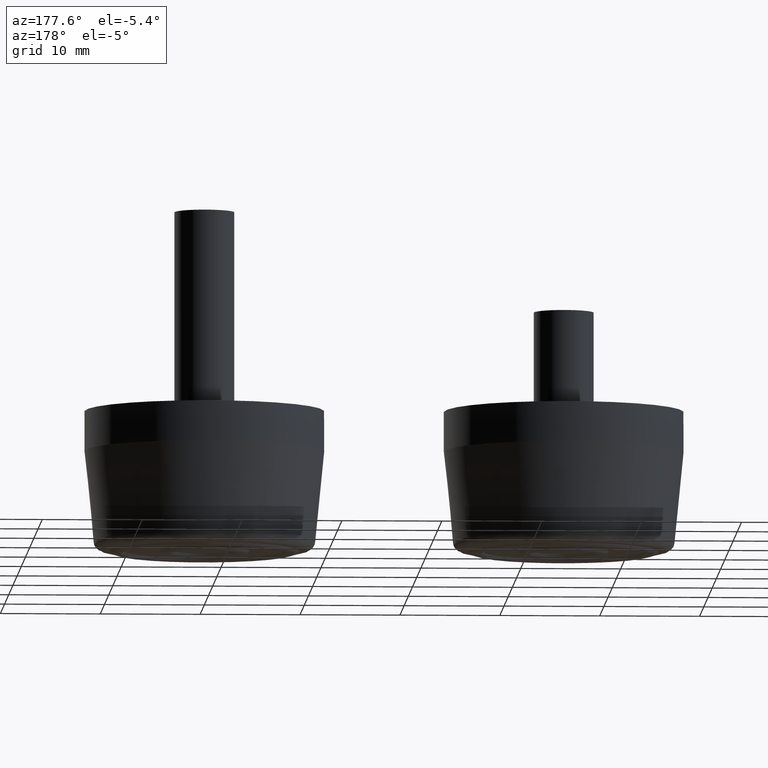
[diagram: clean part render]
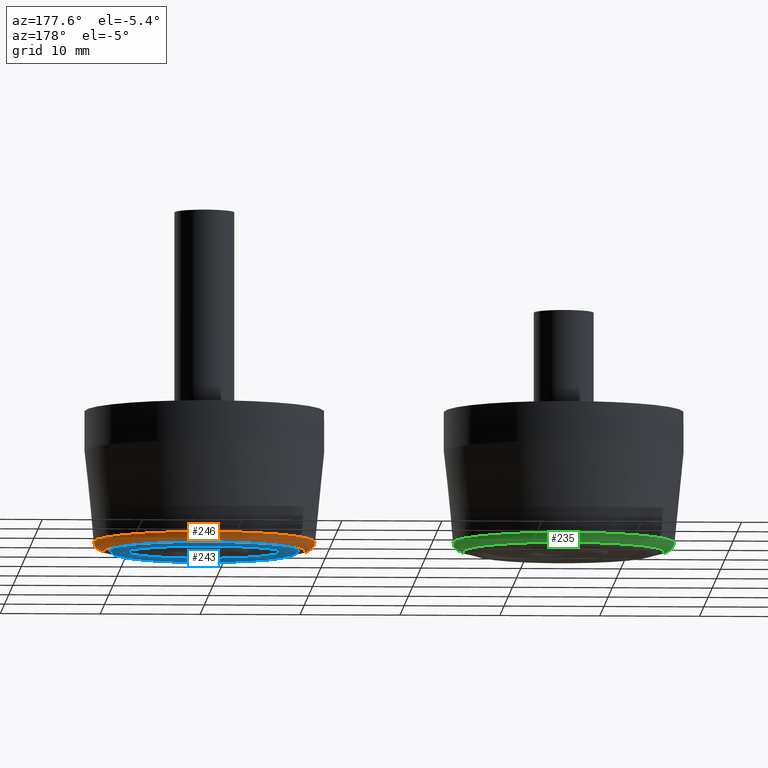
[diagram: same view with three faces highlighted in distinct colors, each labeled with its STEP entity id]
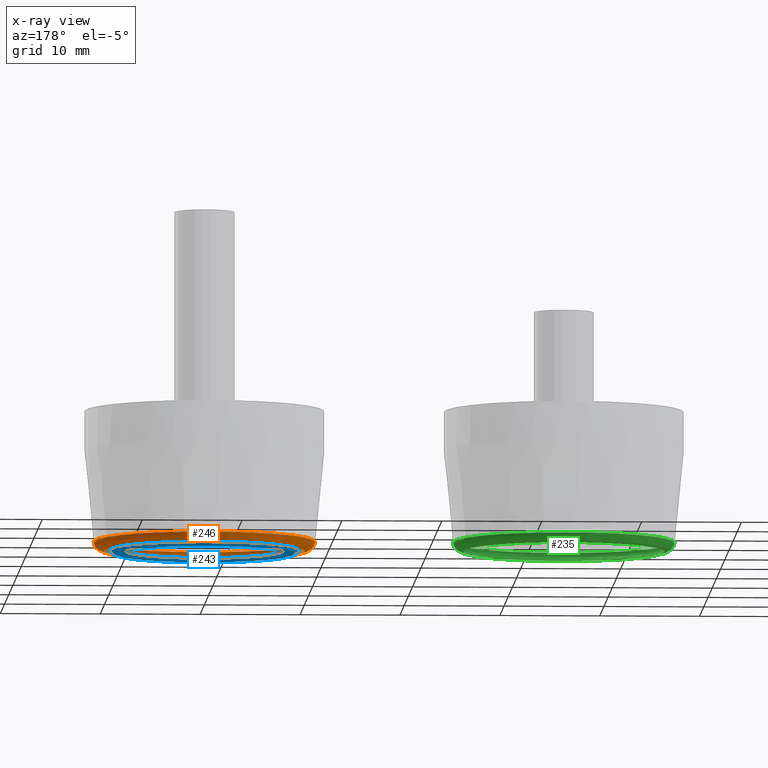
[diagram: x-ray of the same camera — body ghosted, the three highlighted faces saturated]
A machine part, auxiliary view with three faces highlighted in distinct colors.
The next image is the same camera in x-ray (body ghosted, the three faces saturated) — at least one of them is partly hidden behind the body in this view.
Their STEP definitions:

[orange] entity #246 — the highlighted toroidal blend (fillet) surface has major radius 10.095 mm and minor (blend) radius 1 mm.
#34=TOROIDAL_SURFACE('',#289,10.0950124378879,1.);
#59=FACE_BOUND('',#117,.T.);
#80=FACE_OUTER_BOUND('',#116,.T.);
#116=EDGE_LOOP('',(#216));
#117=EDGE_LOOP('',(#217));
#141=CIRCLE('',#287,10.0950124378879);
#142=CIRCLE('',#290,11.0900496280979);
#161=VERTEX_POINT('',#444);
#162=VERTEX_POINT('',#448);
#181=EDGE_CURVE('',#161,#161,#141,.T.);
#182=EDGE_CURVE('',#162,#162,#142,.T.);
#216=ORIENTED_EDGE('',*,*,#181,.T.);
#217=ORIENTED_EDGE('',*,*,#182,.T.);
#246=ADVANCED_FACE('',(#80,#59),#34,.T.);
#287=AXIS2_PLACEMENT_3D('',#445,#368,#369);
#289=AXIS2_PLACEMENT_3D('',#447,#372,#373);
#290=AXIS2_PLACEMENT_3D('',#449,#374,#375);
#368=DIRECTION('center_axis',(0.,0.,1.));
#369=DIRECTION('ref_axis',(1.,-1.22464679914735E-16,0.));
#372=DIRECTION('center_axis',(0.,0.,1.));
#373=DIRECTION('ref_axis',(1.,0.,0.));
#374=DIRECTION('center_axis',(0.,0.,-1.));
#375=DIRECTION('ref_axis',(1.,-1.22464679914735E-16,0.));
#444=CARTESIAN_POINT('',(-10.0950124378879,0.,0.));
#445=CARTESIAN_POINT('Origin',(0.,0.,0.));
#447=CARTESIAN_POINT('Origin',(0.,0.,1.));
#448=CARTESIAN_POINT('',(-11.0900496280979,2.71627875588708E-15,0.900496280979001));
#449=CARTESIAN_POINT('Origin',(0.,0.,0.900496280979001));

[blue] entity #243 — the highlighted toroidal blend (fillet) surface has major radius 8.75 mm and minor (blend) radius 1 mm.
#33=TOROIDAL_SURFACE('',#283,8.75,1.);
#56=FACE_BOUND('',#111,.T.);
#77=FACE_OUTER_BOUND('',#110,.T.);
#110=EDGE_LOOP('',(#210));
#111=EDGE_LOOP('',(#211));
#139=CIRCLE('',#284,8.);
#140=CIRCLE('',#285,9.5);
#159=VERTEX_POINT('',#439);
#160=VERTEX_POINT('',#441);
#179=EDGE_CURVE('',#159,#159,#139,.T.);
#180=EDGE_CURVE('',#160,#160,#140,.T.);
#210=ORIENTED_EDGE('',*,*,#179,.F.);
#211=ORIENTED_EDGE('',*,*,#180,.F.);
#243=ADVANCED_FACE('',(#77,#56),#33,.T.);
#283=AXIS2_PLACEMENT_3D('',#438,#360,#361);
#284=AXIS2_PLACEMENT_3D('',#440,#362,#363);
#285=AXIS2_PLACEMENT_3D('',#442,#364,#365);
#360=DIRECTION('center_axis',(0.,0.,-1.));
#361=DIRECTION('ref_axis',(-1.,0.,0.));
#362=DIRECTION('center_axis',(0.,0.,-1.));
#363=DIRECTION('ref_axis',(1.,0.,0.));
#364=DIRECTION('center_axis',(0.,0.,1.));
#365=DIRECTION('ref_axis',(1.,0.,0.));
#438=CARTESIAN_POINT('Origin',(0.,0.,0.661437827766149));
#439=CARTESIAN_POINT('',(-8.,9.79717439317883E-16,0.));
#440=CARTESIAN_POINT('Origin',(0.,0.,0.));
#441=CARTESIAN_POINT('',(-9.5,1.16341445918999E-15,0.));
#442=CARTESIAN_POINT('Origin',(0.,0.,0.));

[green] entity #235 — the highlighted toroidal blend (fillet) surface has major radius 10.095 mm and minor (blend) radius 1 mm.
#31=TOROIDAL_SURFACE('',#267,10.0950124378879,1.);
#50=FACE_BOUND('',#97,.T.);
#69=FACE_OUTER_BOUND('',#96,.T.);
#96=EDGE_LOOP('',(#196));
#97=EDGE_LOOP('',(#197));
#131=CIRCLE('',#265,10.0950124378879);
#132=CIRCLE('',#268,11.0900496280979);
#151=VERTEX_POINT('',#412);
#152=VERTEX_POINT('',#416);
#171=EDGE_CURVE('',#151,#151,#131,.T.);
#172=EDGE_CURVE('',#152,#152,#132,.T.);
#196=ORIENTED_EDGE('',*,*,#171,.T.);
#197=ORIENTED_EDGE('',*,*,#172,.T.);
#235=ADVANCED_FACE('',(#69,#50),#31,.T.);
#265=AXIS2_PLACEMENT_3D('',#413,#324,#325);
#267=AXIS2_PLACEMENT_3D('',#415,#328,#329);
#268=AXIS2_PLACEMENT_3D('',#417,#330,#331);
#324=DIRECTION('center_axis',(0.,0.,1.));
#325=DIRECTION('ref_axis',(1.,-1.22464679914735E-16,0.));
#328=DIRECTION('center_axis',(0.,0.,1.));
#329=DIRECTION('ref_axis',(1.,0.,0.));
#330=DIRECTION('center_axis',(0.,0.,-1.));
#331=DIRECTION('ref_axis',(1.,-1.22464679914735E-16,0.));
#412=CARTESIAN_POINT('',(-10.0950124378879,0.,0.));
#413=CARTESIAN_POINT('Origin',(0.,0.,0.));
#415=CARTESIAN_POINT('Origin',(0.,0.,1.));
#416=CARTESIAN_POINT('',(-11.0900496280979,2.71627875588708E-15,0.900496280979001));
#417=CARTESIAN_POINT('Origin',(0.,0.,0.900496280979001));